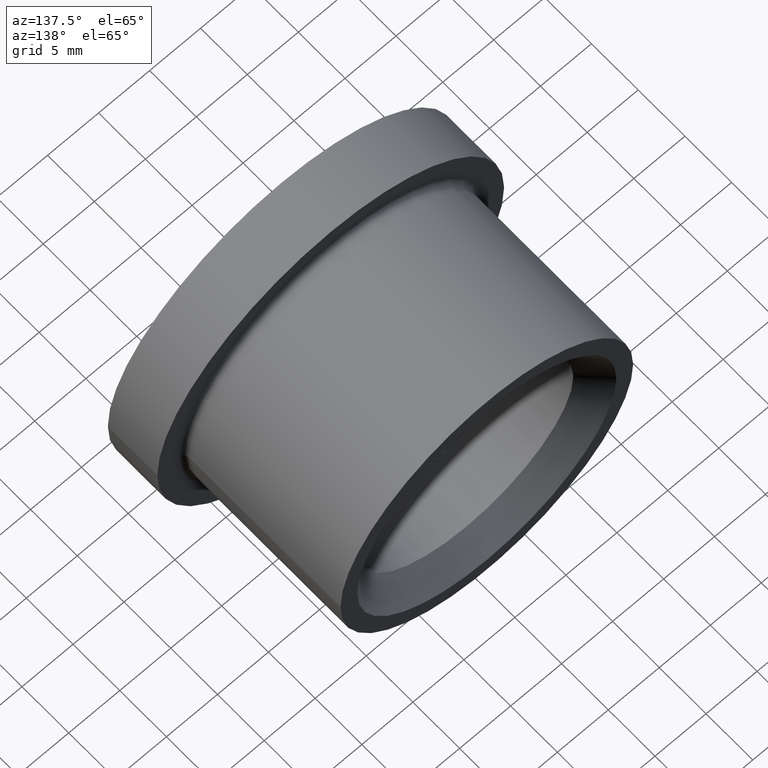
[diagram: clean part render]
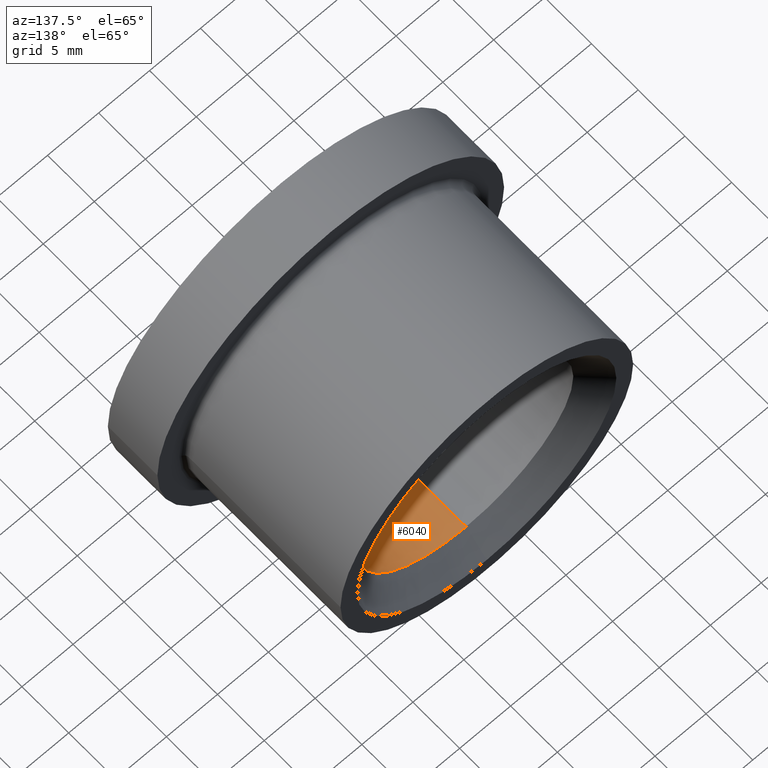
[diagram: same view with one face highlighted and labeled with its STEP entity id]
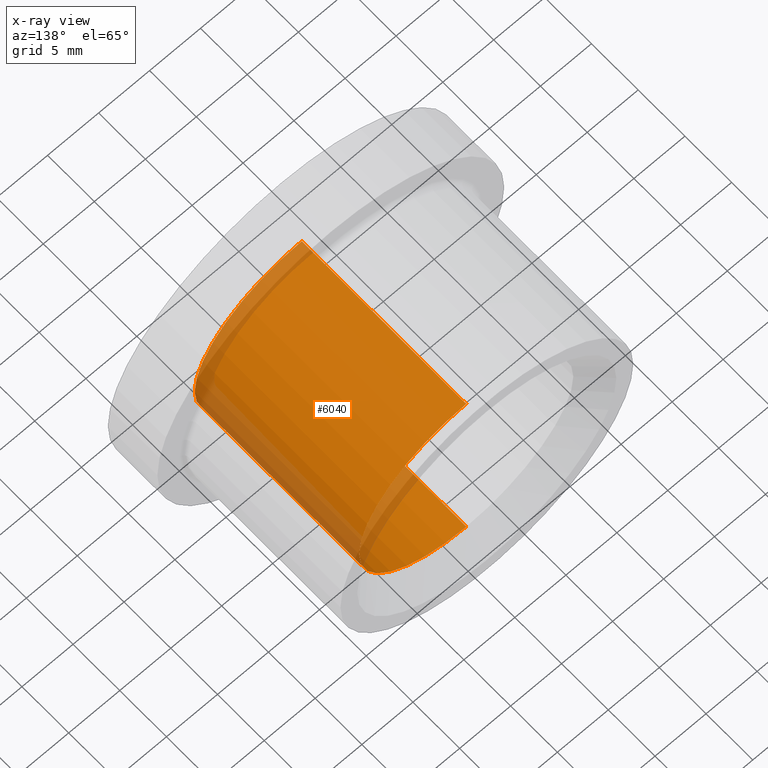
[diagram: x-ray of the same camera — body ghosted, the highlighted face saturated]
A machine part, auxiliary view. The second image highlights one B-rep face of the part: STEP entity #6040.
The next image is the same camera in x-ray: the body ghosted, the highlighted face saturated — about 19% of this face is hidden behind the body in this view.
In plain terms, the highlighted cylindrical surface (partial cylindrical patch) has radius 10.5 mm, axis along (-0, 1, -0).
Its self-contained STEP definition (entity closure, byte-faithful):
#75 = VERTEX_POINT ( 'NONE', #4216 ) ;
#221 = EDGE_CURVE ( 'NONE', #4695, #2394, #7133, .T. ) ;
#376 = VECTOR ( 'NONE', #11143, 1000.000000000000000 ) ;
#1537 = CARTESIAN_POINT ( 'NONE',  ( -3.061616997868381200E-016, 2.200000000000007300, 0.0000000000000000000 ) ) ;
#2394 = VERTEX_POINT ( 'NONE', #8030 ) ;
#2529 = DIRECTION ( 'NONE',  ( -0.0000000000000000000, 1.000000000000000000, -0.0000000000000000000 ) ) ;
#2715 = ORIENTED_EDGE ( 'NONE', *, *, #10063, .T. ) ;
#2738 = AXIS2_PLACEMENT_3D ( 'NONE', #1537, #11920, #8190 ) ;
#3393 = VECTOR ( 'NONE', #2529, 1000.000000000000000 ) ;
#3645 = CARTESIAN_POINT ( 'NONE',  ( -3.061616997868381200E-016, 19.80000000000000400, 10.49999999999999800 ) ) ;
#4045 = DIRECTION ( 'NONE',  ( 0.0000000000000000000, 0.0000000000000000000, 1.000000000000000000 ) ) ;
#4216 = CARTESIAN_POINT ( 'NONE',  ( 9.797174393178827600E-016, 19.80000000000000400, -10.49999999999999800 ) ) ;
#4356 = CARTESIAN_POINT ( 'NONE',  ( 9.797174393178827600E-016, 22.00000000000000400, -10.49999999999999800 ) ) ;
#4358 = AXIS2_PLACEMENT_3D ( 'NONE', #7184, #8179, #5409 ) ;
#4609 = ORIENTED_EDGE ( 'NONE', *, *, #12131, .F. ) ;
#4695 = VERTEX_POINT ( 'NONE', #11921 ) ;
#5096 = EDGE_CURVE ( 'NONE', #11188, #75, #10682, .T. ) ;
#5409 = DIRECTION ( 'NONE',  ( 0.0000000000000000000, 0.0000000000000000000, 1.000000000000000000 ) ) ;
#5426 = AXIS2_PLACEMENT_3D ( 'NONE', #5841, #8898, #4045 ) ;
#5841 = CARTESIAN_POINT ( 'NONE',  ( -3.061616997868381200E-016, 19.80000000000000400, 0.0000000000000000000 ) ) ;
#6040 = ADVANCED_FACE ( 'NONE', ( #11643 ), #10302, .F. ) ;
#7133 = CIRCLE ( 'NONE', #2738, 10.49999999999999600 ) ;
#7184 = CARTESIAN_POINT ( 'NONE',  ( -3.061616997868381200E-016, 22.00000000000000400, 0.0000000000000000000 ) ) ;
#7796 = EDGE_LOOP ( 'NONE', ( #4609, #11954, #2715, #9370 ) ) ;
#8030 = CARTESIAN_POINT ( 'NONE',  ( -3.061616997868381200E-016, 2.200000000000007300, -10.49999999999999600 ) ) ;
#8179 = DIRECTION ( 'NONE',  ( -0.0000000000000000000, 1.000000000000000000, -0.0000000000000000000 ) ) ;
#8190 = DIRECTION ( 'NONE',  ( 0.0000000000000000000, 0.0000000000000000000, 1.000000000000000000 ) ) ;
#8888 = LINE ( 'NONE', #4356, #376 ) ;
#8898 = DIRECTION ( 'NONE',  ( -0.0000000000000000000, 1.000000000000000000, -0.0000000000000000000 ) ) ;
#9061 = LINE ( 'NONE', #11109, #3393 ) ;
#9370 = ORIENTED_EDGE ( 'NONE', *, *, #5096, .T. ) ;
#10063 = EDGE_CURVE ( 'NONE', #4695, #11188, #9061, .T. ) ;
#10302 = CYLINDRICAL_SURFACE ( 'NONE', #4358, 10.49999999999999800 ) ;
#10682 = CIRCLE ( 'NONE', #5426, 10.49999999999999800 ) ;
#11109 = CARTESIAN_POINT ( 'NONE',  ( -3.061616997868381200E-016, 22.00000000000000400, 10.49999999999999800 ) ) ;
#11143 = DIRECTION ( 'NONE',  ( -0.0000000000000000000, 1.000000000000000000, -0.0000000000000000000 ) ) ;
#11188 = VERTEX_POINT ( 'NONE', #3645 ) ;
#11643 = FACE_OUTER_BOUND ( 'NONE', #7796, .T. ) ;
#11920 = DIRECTION ( 'NONE',  ( -0.0000000000000000000, 1.000000000000000000, -0.0000000000000000000 ) ) ;
#11921 = CARTESIAN_POINT ( 'NONE',  ( 1.114428587224091100E-015, 2.200000000000007300, 10.49999999999999600 ) ) ;
#11954 = ORIENTED_EDGE ( 'NONE', *, *, #221, .F. ) ;
#12131 = EDGE_CURVE ( 'NONE', #2394, #75, #8888, .T. ) ;